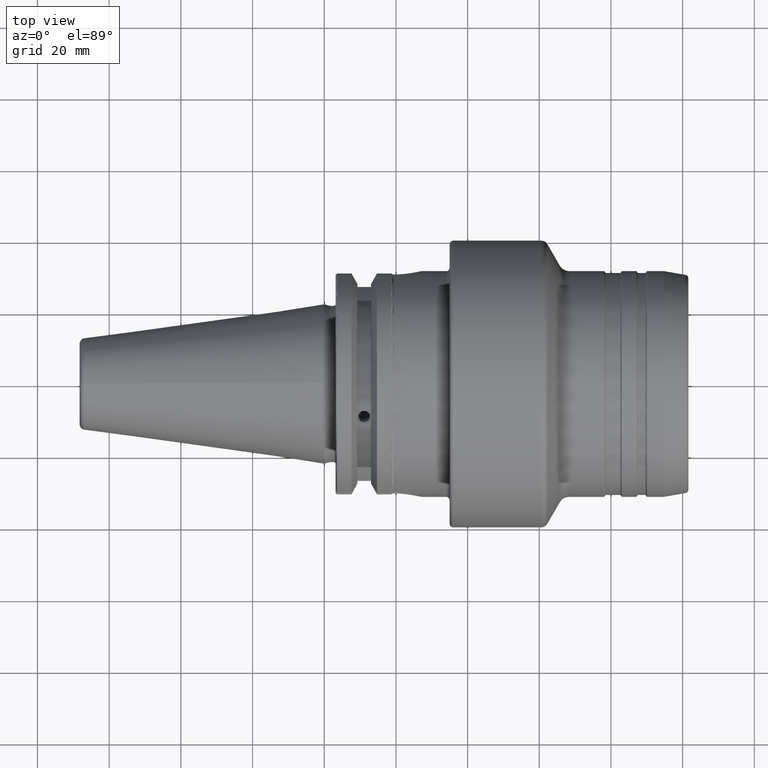
[diagram: clean part render]
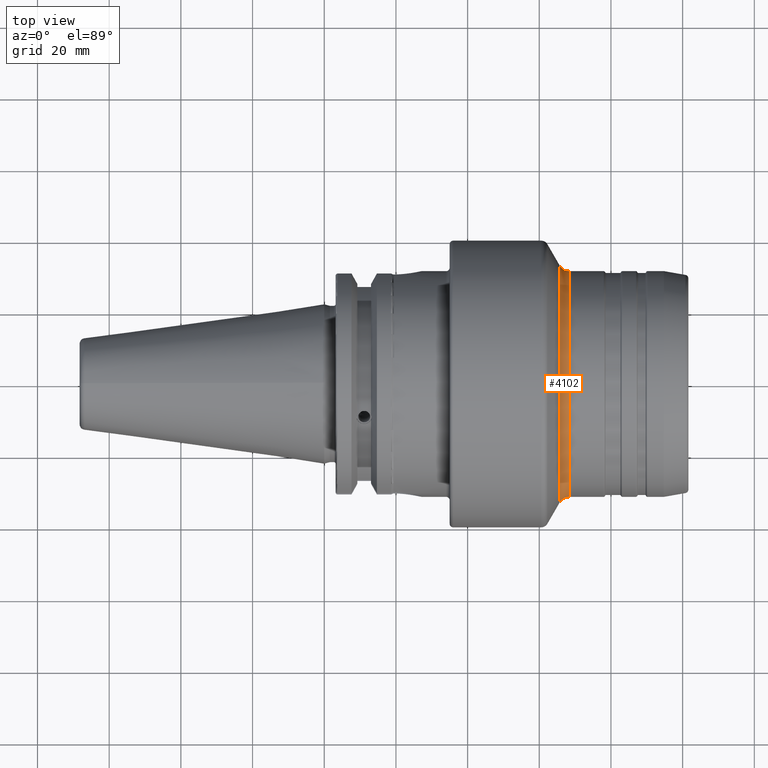
[diagram: same view with one face highlighted and labeled with its STEP entity id]
A machine part, top view. The second image highlights one B-rep face of the part: STEP entity #4102.
In plain terms, the highlighted toroidal blend (fillet) surface has major radius 34.4932 mm and minor (blend) radius 2.9972 mm.
Its self-contained STEP definition (entity closure, byte-faithful):
#1341=CARTESIAN_POINT('',(2.587936334118E0,0.E0,0.E0));
#1342=DIRECTION('',(1.E0,0.E0,0.E0));
#1343=DIRECTION('',(0.E0,1.E0,0.E0));
#1344=AXIS2_PLACEMENT_3D('',#1341,#1342,#1343);
#1351=CARTESIAN_POINT('',(2.690127331764E0,1.358E0,-2.028065215764E-14));
#1352=DIRECTION('',(0.E0,1.493423440468E-14,1.E0));
#1353=DIRECTION('',(-8.660254037845E-1,-5.E-1,0.E0));
#1354=AXIS2_PLACEMENT_3D('',#1351,#1352,#1353);
#1356=CARTESIAN_POINT('',(2.690127331764E0,-1.358E0,2.012452704481E-14));
#1357=DIRECTION('',(0.E0,-1.482147737875E-14,-1.E0));
#1358=DIRECTION('',(-8.660254037845E-1,5.E-1,0.E0));
#1359=AXIS2_PLACEMENT_3D('',#1356,#1357,#1358);
#1448=CARTESIAN_POINT('',(2.690127331764E0,0.E0,0.E0));
#1449=DIRECTION('',(1.E0,0.E0,0.E0));
#1450=DIRECTION('',(0.E0,1.E0,0.E0));
#1451=AXIS2_PLACEMENT_3D('',#1448,#1449,#1450);
#2705=CARTESIAN_POINT('',(2.587936334118E0,-1.299E0,0.E0));
#2706=CARTESIAN_POINT('',(2.587936334118E0,1.299E0,0.E0));
#2707=VERTEX_POINT('',#2705);
#2708=VERTEX_POINT('',#2706);
#2709=CARTESIAN_POINT('',(2.690127331764E0,-1.24E0,0.E0));
#2710=CARTESIAN_POINT('',(2.690127331764E0,1.24E0,0.E0));
#2711=VERTEX_POINT('',#2709);
#2712=VERTEX_POINT('',#2710);
#4088=CARTESIAN_POINT('',(2.690127331764E0,0.E0,0.E0));
#4089=DIRECTION('',(1.E0,0.E0,0.E0));
#4090=DIRECTION('',(0.E0,9.999564454515E-1,-9.333123803003E-3));
#4091=AXIS2_PLACEMENT_3D('',#4088,#4089,#4090);
#4092=TOROIDAL_SURFACE('',#4091,1.358E0,1.18E-1);
#4093=ORIENTED_EDGE('',*,*,#4078,.F.);
#4095=ORIENTED_EDGE('',*,*,#4094,.T.);
#4097=ORIENTED_EDGE('',*,*,#4096,.T.);
#4099=ORIENTED_EDGE('',*,*,#4098,.F.);
#4100=EDGE_LOOP('',(#4093,#4095,#4097,#4099));
#4101=FACE_OUTER_BOUND('',#4100,.F.);
#4102=ADVANCED_FACE('',(#4101),#4092,.F.);
#1345=CIRCLE('',#1344,1.299E0);
#1355=CIRCLE('',#1354,1.18E-1);
#1360=CIRCLE('',#1359,1.18E-1);
#1452=CIRCLE('',#1451,1.24E0);
#4078=EDGE_CURVE('',#2708,#2707,#1345,.T.);
#4094=EDGE_CURVE('',#2708,#2712,#1355,.T.);
#4096=EDGE_CURVE('',#2712,#2711,#1452,.T.);
#4098=EDGE_CURVE('',#2707,#2711,#1360,.T.);